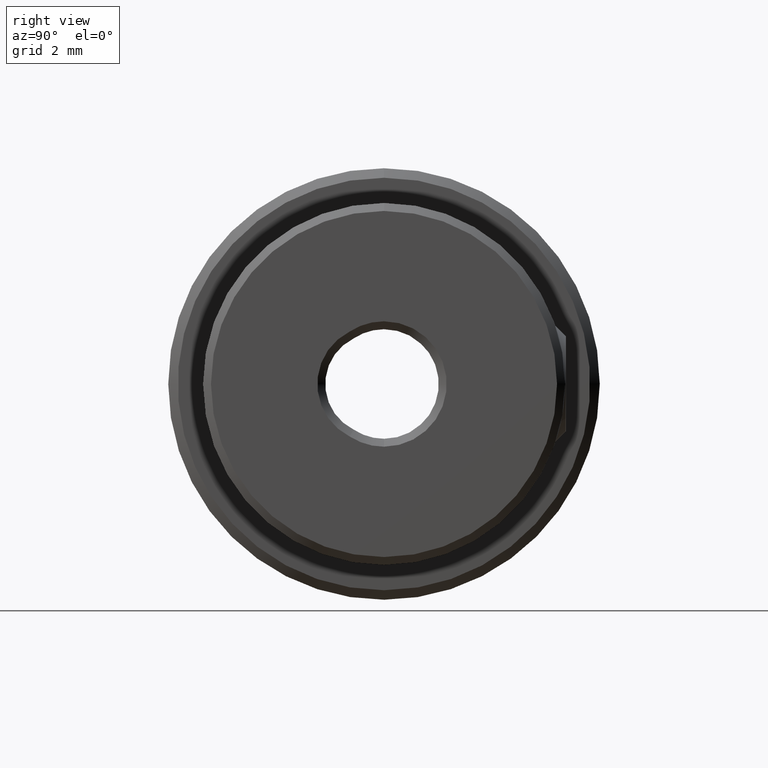
[diagram: clean part render]
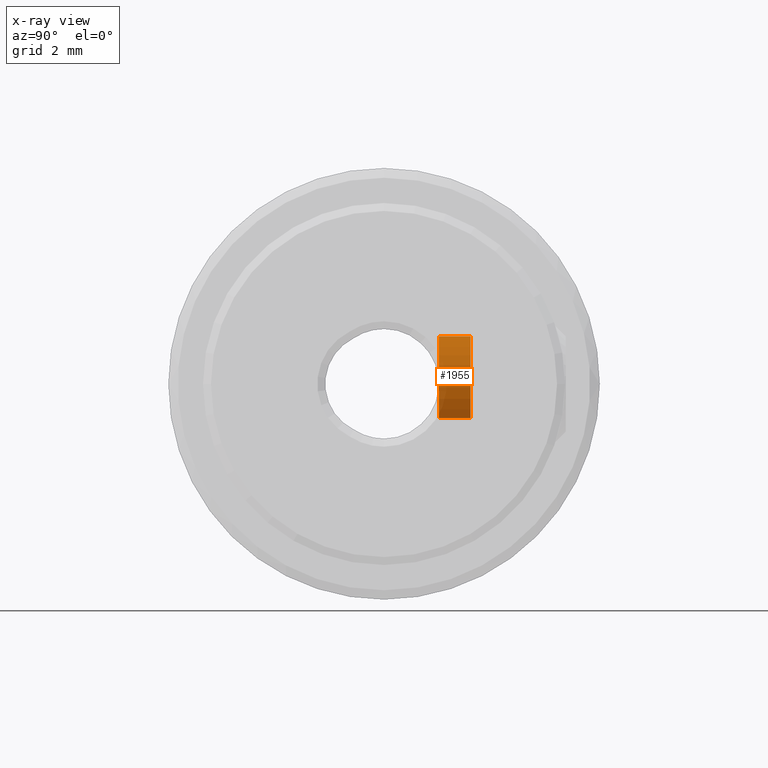
[diagram: x-ray — body ghosted, one internal face saturated and labeled with its STEP entity id]
A machine part, right view, then the same camera in x-ray: the body is ghosted and one INTERNAL B-rep face — a face not visible from any outside direction — is saturated and labeled: STEP entity #1955.
In plain terms, the highlighted cylindrical surface (partial cylindrical patch) has radius 1.5 mm, axis along (-0, 1, 0).
Its self-contained STEP definition (entity closure, byte-faithful):
#44 = DIRECTION ( 'NONE',  ( 0.000000000000000000, -1.000000000000000000, 0.000000000000000000 ) ) ;
#132 = VERTEX_POINT ( 'NONE', #1178 ) ;
#176 = DIRECTION ( 'NONE',  ( -0.000000000000000000, 1.000000000000000000, -0.000000000000000000 ) ) ;
#226 = CARTESIAN_POINT ( 'NONE',  ( 0.000000000000000000, -1.000000000000000000, 0.000000000000000000 ) ) ;
#299 = CARTESIAN_POINT ( 'NONE',  ( 0.000000000000000000, 0.000000000000000000, 1.499999999999997780 ) ) ;
#310 = ORIENTED_EDGE ( 'NONE', *, *, #1189, .F. ) ;
#485 = ORIENTED_EDGE ( 'NONE', *, *, #2956, .T. ) ;
#570 = AXIS2_PLACEMENT_3D ( 'NONE', #675, #2504, #2279 ) ;
#675 = CARTESIAN_POINT ( 'NONE',  ( 0.000000000000000000, 0.000000000000000000, 0.000000000000000000 ) ) ;
#684 = LINE ( 'NONE', #940, #868 ) ;
#698 = VERTEX_POINT ( 'NONE', #299 ) ;
#723 = CARTESIAN_POINT ( 'NONE',  ( 1.836970198721030181E-16, -1.000000000000000000, -1.500000000000000222 ) ) ;
#868 = VECTOR ( 'NONE', #176, 1000.000000000000000 ) ;
#940 = CARTESIAN_POINT ( 'NONE',  ( 0.000000000000000000, -1.000000000000000000, 1.500000000000000222 ) ) ;
#1178 = CARTESIAN_POINT ( 'NONE',  ( 2.143131898507866818E-16, 0.000000000000000000, -1.499999999999997780 ) ) ;
#1179 = DIRECTION ( 'NONE',  ( -0.000000000000000000, 1.000000000000000000, -0.000000000000000000 ) ) ;
#1189 = EDGE_CURVE ( 'NONE', #2362, #698, #684, .T. ) ;
#1207 = DIRECTION ( 'NONE',  ( 0.000000000000000000, 0.000000000000000000, -1.000000000000000000 ) ) ;
#1254 = ORIENTED_EDGE ( 'NONE', *, *, #1702, .T. ) ;
#1448 = LINE ( 'NONE', #723, #2402 ) ;
#1646 = EDGE_LOOP ( 'NONE', ( #2875, #1254, #485, #310 ) ) ;
#1655 = CYLINDRICAL_SURFACE ( 'NONE', #1928, 1.500000000000000222 ) ;
#1702 = EDGE_CURVE ( 'NONE', #2690, #132, #1448, .T. ) ;
#1707 = CARTESIAN_POINT ( 'NONE',  ( 0.000000000000000000, -1.000000000000000000, 0.000000000000000000 ) ) ;
#1928 = AXIS2_PLACEMENT_3D ( 'NONE', #226, #1179, #3057 ) ;
#1955 = ADVANCED_FACE ( 'NONE', ( #2823 ), #1655, .T. ) ;
#1994 = DIRECTION ( 'NONE',  ( -0.000000000000000000, 1.000000000000000000, -0.000000000000000000 ) ) ;
#1996 = EDGE_CURVE ( 'NONE', #2690, #2362, #2608, .T. ) ;
#2271 = CARTESIAN_POINT ( 'NONE',  ( 0.000000000000000000, -1.000000000000000000, 1.500000000000000222 ) ) ;
#2279 = DIRECTION ( 'NONE',  ( 0.000000000000000000, 0.000000000000000000, 1.000000000000000000 ) ) ;
#2298 = AXIS2_PLACEMENT_3D ( 'NONE', #1707, #44, #1207 ) ;
#2330 = CARTESIAN_POINT ( 'NONE',  ( 1.836970198721030181E-16, -1.000000000000000000, -1.500000000000000222 ) ) ;
#2362 = VERTEX_POINT ( 'NONE', #2271 ) ;
#2402 = VECTOR ( 'NONE', #1994, 1000.000000000000000 ) ;
#2504 = DIRECTION ( 'NONE',  ( -0.000000000000000000, -1.000000000000000000, -0.000000000000000000 ) ) ;
#2608 = CIRCLE ( 'NONE', #2298, 1.500000000000000222 ) ;
#2690 = VERTEX_POINT ( 'NONE', #2330 ) ;
#2823 = FACE_OUTER_BOUND ( 'NONE', #1646, .T. ) ;
#2875 = ORIENTED_EDGE ( 'NONE', *, *, #1996, .F. ) ;
#2897 = CIRCLE ( 'NONE', #570, 1.499999999999997780 ) ;
#2956 = EDGE_CURVE ( 'NONE', #132, #698, #2897, .T. ) ;
#3057 = DIRECTION ( 'NONE',  ( 0.000000000000000000, 0.000000000000000000, 1.000000000000000000 ) ) ;